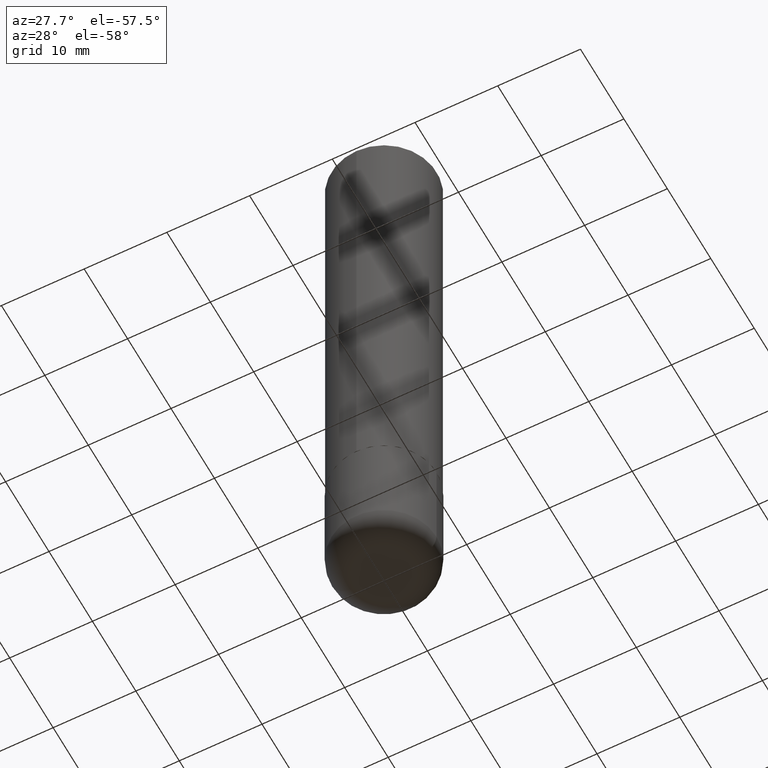
[diagram: clean part render]
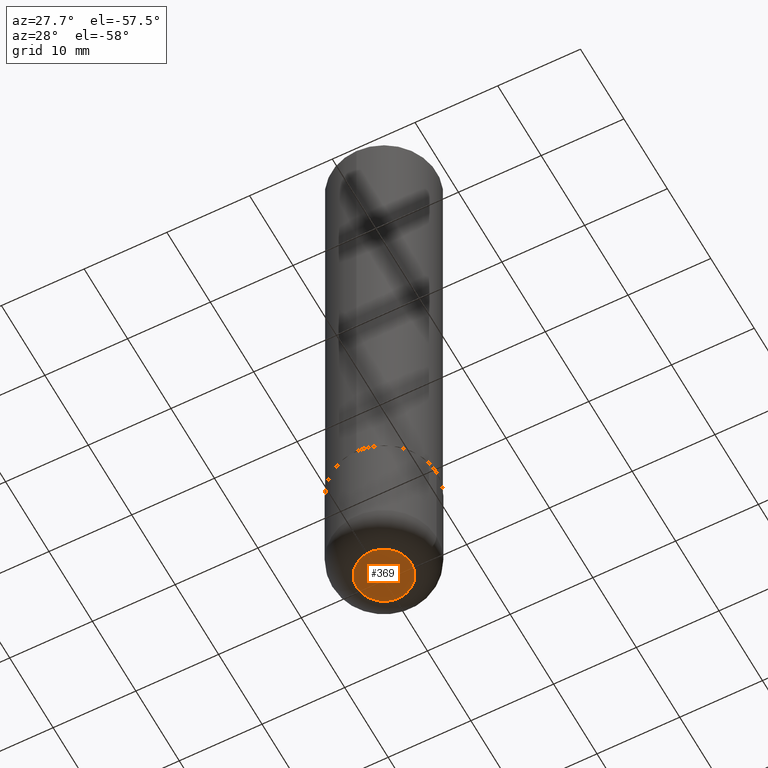
[diagram: same view with one face highlighted and labeled with its STEP entity id]
A machine part, auxiliary view. The second image highlights one B-rep face of the part: STEP entity #369.
In plain terms, the highlighted planar face has unit normal (0, -0, -1).
Its self-contained STEP definition (entity closure, byte-faithful):
#26 = EDGE_LOOP ( 'NONE', ( #284, #61 ) ) ;
#29 = DIRECTION ( 'NONE',  ( -1.000000000000000000, 6.982962677686265922E-15, -4.876176775795935793E-29 ) ) ;
#32 = DIRECTION ( 'NONE',  ( 1.000000000000000000, -6.982962677686273810E-15, 0.000000000000000000 ) ) ;
#60 = DIRECTION ( 'NONE',  ( 2.438088387897960049E-29, -3.491481338843145188E-15, -1.000000000000000000 ) ) ;
#61 = ORIENTED_EDGE ( 'NONE', *, *, #358, .F. ) ;
#66 = VERTEX_POINT ( 'NONE', #333 ) ;
#68 = CARTESIAN_POINT ( 'NONE',  ( 0.1300000000000000044, -1.138222916462865292E-14, -3.000000000000000444 ) ) ;
#90 = CARTESIAN_POINT ( 'NONE',  ( 7.336406418555409790E-29, -1.047444401652943635E-14, -3.000000000000000444 ) ) ;
#93 = PLANE ( 'NONE',  #121 ) ;
#95 = CIRCLE ( 'NONE', #336, 0.1300000000000000044 ) ;
#121 = AXIS2_PLACEMENT_3D ( 'NONE', #352, #60, #29 ) ;
#133 = AXIS2_PLACEMENT_3D ( 'NONE', #90, #286, #32 ) ;
#138 = DIRECTION ( 'NONE',  ( -2.445468806185136597E-29, 3.491481338843145583E-15, 1.000000000000000000 ) ) ;
#139 = VERTEX_POINT ( 'NONE', #68 ) ;
#142 = EDGE_CURVE ( 'NONE', #139, #66, #95, .T. ) ;
#155 = CIRCLE ( 'NONE', #133, 0.1300000000000000044 ) ;
#200 = DIRECTION ( 'NONE',  ( 1.000000000000000000, -6.982962677686273810E-15, 0.000000000000000000 ) ) ;
#202 = CARTESIAN_POINT ( 'NONE',  ( 7.336406418555409790E-29, -1.047444401652943635E-14, -3.000000000000000444 ) ) ;
#220 = FACE_OUTER_BOUND ( 'NONE', #26, .T. ) ;
#284 = ORIENTED_EDGE ( 'NONE', *, *, #142, .F. ) ;
#286 = DIRECTION ( 'NONE',  ( -2.445468806185136597E-29, 3.491481338843145583E-15, 1.000000000000000000 ) ) ;
#333 = CARTESIAN_POINT ( 'NONE',  ( -0.1300000000000000044, -8.914923938254659640E-15, -3.000000000000000444 ) ) ;
#336 = AXIS2_PLACEMENT_3D ( 'NONE', #202, #138, #200 ) ;
#352 = CARTESIAN_POINT ( 'NONE',  ( 7.336406418555409790E-29, -1.047444401652943635E-14, -3.000000000000000444 ) ) ;
#358 = EDGE_CURVE ( 'NONE', #66, #139, #155, .T. ) ;
#369 = ADVANCED_FACE ( 'NONE', ( #220 ), #93, .T. ) ;